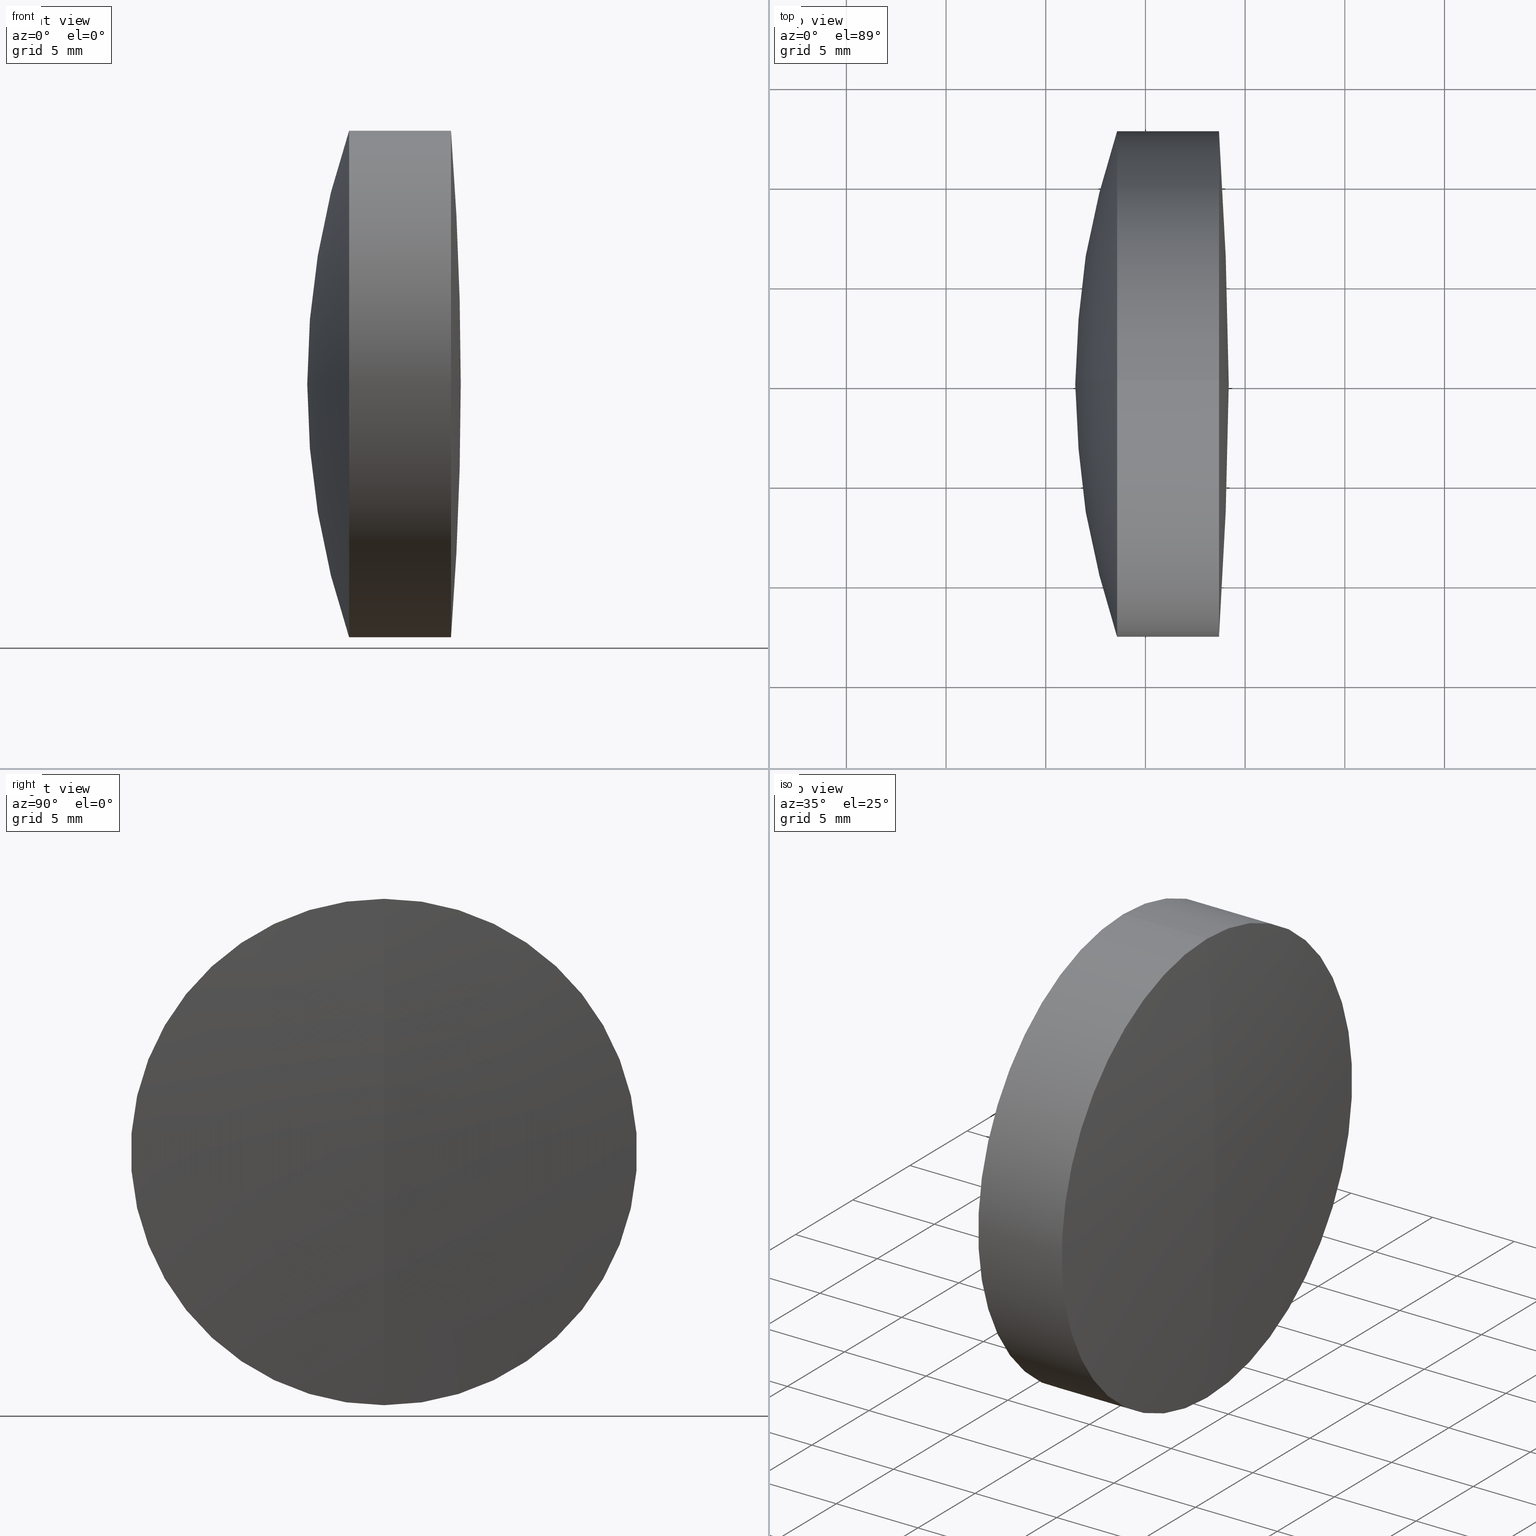
[diagram: canonical four-view strip — front | top / right | iso, engineering-drawing reading convention]
A machine part, canonical four-view strip (front | top / right | iso — engineering-drawing reading convention). The complete STEP part file that produces these views, byte-faithful:
ISO-10303-21;
HEADER;
FILE_DESCRIPTION (( 'STEP AP214' ),
    '1' );
FILE_NAME ('145119.STEP',
    '2019-06-03T01:16:00',
    ( 'user' ),
    ( '΢���й�' ),
    'SwSTEP 2.0',
    'SolidWorks 2016',
    '' );
FILE_SCHEMA (( 'AUTOMOTIVE_DESIGN' ));
ENDSEC;

DATA;
#1 = EDGE_CURVE ( 'NONE', #163, #24, #105, .T. ) ;
#2 = ORIENTED_EDGE ( 'NONE', *, *, #211, .T. ) ;
#3 = CIRCLE ( 'NONE', #226, 12.70000000000001000 ) ;
#4 = VERTEX_POINT ( 'NONE', #100 ) ;
#5 = EDGE_LOOP ( 'NONE', ( #139, #215, #315, #270 ) ) ;
#6 = CARTESIAN_POINT ( 'NONE',  ( 294.9373187479075700, 1.555301434917139400E-015, -12.70000000000000800 ) ) ;
#7 = ADVANCED_FACE ( 'NONE', ( #311 ), #265, .T. ) ;
#8 = AXIS2_PLACEMENT_3D ( 'NONE', #10, #205, #246 ) ;
#9 = MANIFOLD_SOLID_BREP ( '��ת3', #157 ) ;
#10 = CARTESIAN_POINT ( 'NONE',  ( 264.4789865545651500, 0.0000000000000000000, 6.938893903907228400E-015 ) ) ;
#11 = DIRECTION ( 'NONE',  ( 0.0000000000000000000, 0.0000000000000000000, 1.000000000000000000 ) ) ;
#12 = CARTESIAN_POINT ( 'NONE',  ( 298.6900972909085700, 1.555301434917140200E-015, -12.70000000000001000 ) ) ;
#13 = EDGE_LOOP ( 'NONE', ( #131, #283, #19 ) ) ;
#14 = CARTESIAN_POINT ( 'NONE',  ( 264.4789865545651500, 0.0000000000000000000, 6.938893903907228400E-015 ) ) ;
#15 = DIRECTION ( 'NONE',  ( 0.0000000000000000000, -1.224646799147353500E-016, 1.000000000000000000 ) ) ;
#16 = SURFACE_STYLE_FILL_AREA ( #305 ) ;
#17 = SURFACE_SIDE_STYLE ('',( #16 ) ) ;
#18 =( NAMED_UNIT ( * ) SI_UNIT ( $, .STERADIAN. ) SOLID_ANGLE_UNIT ( ) );
#19 = ORIENTED_EDGE ( 'NONE', *, *, #271, .F. ) ;
#20 = CIRCLE ( 'NONE', #141, 12.70000000000002600 ) ;
#21 = STYLED_ITEM ( 'NONE', ( #287 ), #94 ) ;
#22 =( GEOMETRIC_REPRESENTATION_CONTEXT ( 3 ) GLOBAL_UNCERTAINTY_ASSIGNED_CONTEXT ( ( #172 ) ) GLOBAL_UNIT_ASSIGNED_CONTEXT ( ( #144, #321, #170 ) ) REPRESENTATION_CONTEXT ( 'NONE', 'WORKASPACE' ) );
#23 = CIRCLE ( 'NONE', #269, 12.70000000000000800 ) ;
#24 = VERTEX_POINT ( 'NONE', #310 ) ;
#25 = VECTOR ( 'NONE', #138, 1000.000000000000000 ) ;
#26 = DIRECTION ( 'NONE',  ( -1.000000000000000000, -0.0000000000000000000, -0.0000000000000000000 ) ) ;
#27 = DIRECTION ( 'NONE',  ( 0.0000000000000000000, -1.224646799147353200E-016, 1.000000000000000000 ) ) ;
#28 = AXIS2_PLACEMENT_3D ( 'NONE', #60, #173, #147 ) ;
#29 = DIRECTION ( 'NONE',  ( -1.000000000000000000, -0.0000000000000000000, -0.0000000000000000000 ) ) ;
#30 = CARTESIAN_POINT ( 'NONE',  ( 294.9373187479075700, 0.0000000000000000000, 12.70000000000000800 ) ) ;
#31 =( NAMED_UNIT ( * ) SI_UNIT ( $, .STERADIAN. ) SOLID_ANGLE_UNIT ( ) );
#32 = UNCERTAINTY_MEASURE_WITH_UNIT (LENGTH_MEASURE( 1.000000000000000100E-005 ), #43, 'distance_accuracy_value', 'NONE');
#33 = CIRCLE ( 'NONE', #135, 33.00000000000000000 ) ;
#34 = CIRCLE ( 'NONE', #28, 33.00000000000000700 ) ;
#35 =( GEOMETRIC_REPRESENTATION_CONTEXT ( 3 ) GLOBAL_UNCERTAINTY_ASSIGNED_CONTEXT ( ( #313 ) ) GLOBAL_UNIT_ASSIGNED_CONTEXT ( ( #177, #90, #309 ) ) REPRESENTATION_CONTEXT ( 'NONE', 'WORKASPACE' ) );
#36 = VECTOR ( 'NONE', #155, 1000.000000000000000 ) ;
#37 = FACE_OUTER_BOUND ( 'NONE', #13, .T. ) ;
#38 = DIRECTION ( 'NONE',  ( -1.000000000000000000, -0.0000000000000000000, -0.0000000000000000000 ) ) ;
#39 = DIRECTION ( 'NONE',  ( 0.0000000000000000000, 0.0000000000000000000, 1.000000000000000000 ) ) ;
#40 = ADVANCED_FACE ( 'NONE', ( #244 ), #180, .T. ) ;
#41 = DIRECTION ( 'NONE',  ( 0.0000000000000000000, 0.0000000000000000000, 1.000000000000000000 ) ) ;
#42 = AXIS2_PLACEMENT_3D ( 'NONE', #61, #129, #11 ) ;
#43 =( LENGTH_UNIT ( ) NAMED_UNIT ( * ) SI_UNIT ( .MILLI., .METRE. ) );
#44 = ORIENTED_EDGE ( 'NONE', *, *, #271, .T. ) ;
#45 = FACE_OUTER_BOUND ( 'NONE', #291, .T. ) ;
#46 = AXIS2_PLACEMENT_3D ( 'NONE', #123, #174, #87 ) ;
#47 = ORIENTED_EDGE ( 'NONE', *, *, #146, .F. ) ;
#48 = CIRCLE ( 'NONE', #300, 39.47999999999997600 ) ;
#49 = EDGE_CURVE ( 'NONE', #201, #187, #33, .T. ) ;
#50 = ORIENTED_EDGE ( 'NONE', *, *, #185, .F. ) ;
#51 = VERTEX_POINT ( 'NONE', #229 ) ;
#52 = DIRECTION ( 'NONE',  ( 0.0000000000000000000, 0.0000000000000000000, 1.000000000000000000 ) ) ;
#53 = SPHERICAL_SURFACE ( 'NONE', #263, 33.00000000000000700 ) ;
#54 = ORIENTED_EDGE ( 'NONE', *, *, #148, .F. ) ;
#55 = CARTESIAN_POINT ( 'NONE',  ( 124.5233095260452400, 0.0000000000000000000, 0.0000000000000000000 ) ) ;
#56 = APPLICATION_PROTOCOL_DEFINITION ( 'draft international standard', 'automotive_design', 1998, #82 ) ;
#57 = ORIENTED_EDGE ( 'NONE', *, *, #137, .T. ) ;
#58 = DIRECTION ( 'NONE',  ( -1.000000000000000000, -0.0000000000000000000, -0.0000000000000000000 ) ) ;
#59 = VERTEX_POINT ( 'NONE', #279 ) ;
#60 = CARTESIAN_POINT ( 'NONE',  ( 264.4789865545651500, 0.0000000000000000000, 6.938893903907228400E-015 ) ) ;
#61 = CARTESIAN_POINT ( 'NONE',  ( 124.5233095260452400, 0.0000000000000000000, 0.0000000000000000000 ) ) ;
#62 = AXIS2_PLACEMENT_3D ( 'NONE', #331, #189, #340 ) ;
#63 = ADVANCED_FACE ( 'NONE', ( #235 ), #103, .T. ) ;
#64 = PRODUCT_CONTEXT ( 'NONE', #82, 'mechanical' ) ;
#65 = DIRECTION ( 'NONE',  ( -1.000000000000000000, -0.0000000000000000000, -0.0000000000000000000 ) ) ;
#66 = DIRECTION ( 'NONE',  ( -0.0000000000000000000, -1.000000000000000000, -0.0000000000000000000 ) ) ;
#67 = CARTESIAN_POINT ( 'NONE',  ( 297.4789865545651500, 0.0000000000000000000, 8.959561122500361500E-015 ) ) ;
#68 = VERTEX_POINT ( 'NONE', #67 ) ;
#69 = FILL_AREA_STYLE ('',( #282 ) ) ;
#70 = EDGE_CURVE ( 'NONE', #51, #59, #23, .T. ) ;
#71 = EDGE_CURVE ( 'NONE', #59, #51, #306, .T. ) ;
#72 = AXIS2_PLACEMENT_3D ( 'NONE', #206, #39, #224 ) ;
#73 = EDGE_LOOP ( 'NONE', ( #153, #57, #133, #161 ) ) ;
#74 = FACE_OUTER_BOUND ( 'NONE', #280, .T. ) ;
#75 = ORIENTED_EDGE ( 'NONE', *, *, #214, .T. ) ;
#76 = ORIENTED_EDGE ( 'NONE', *, *, #185, .T. ) ;
#77 = CARTESIAN_POINT ( 'NONE',  ( -0.5519199926577972300, 0.0000000000000000000, 0.0000000000000000000 ) ) ;
#78 = ORIENTED_EDGE ( 'NONE', *, *, #214, .F. ) ;
#79 = AXIS2_PLACEMENT_3D ( 'NONE', #165, #342, #190 ) ;
#80 = CARTESIAN_POINT ( 'NONE',  ( 330.9589865545651700, 0.0000000000000000000, 8.575898305430526300E-015 ) ) ;
#81 = CARTESIAN_POINT ( 'NONE',  ( 299.1789865545650900, 0.0000000000000000000, 1.011558256095713300E-014 ) ) ;
#82 = APPLICATION_CONTEXT ( 'automotive_design' ) ;
#83 = COLOUR_RGB ( '',1.000000000000000000, 1.000000000000000000, 1.000000000000000000 ) ;
#84 = EDGE_LOOP ( 'NONE', ( #268, #156, #288, #203 ) ) ;
#85 = FACE_OUTER_BOUND ( 'NONE', #5, .T. ) ;
#86 = AXIS2_PLACEMENT_3D ( 'NONE', #256, #66, #151 ) ;
#87 = DIRECTION ( 'NONE',  ( 0.0000000000000000000, 0.0000000000000000000, -1.000000000000000000 ) ) ;
#88 = CARTESIAN_POINT ( 'NONE',  ( 133.9789865545651500, 0.0000000000000000000, 0.0000000000000000000 ) ) ;
#89 = ADVANCED_FACE ( 'NONE', ( #297 ), #169, .T. ) ;
#90 =( NAMED_UNIT ( * ) PLANE_ANGLE_UNIT ( ) SI_UNIT ( $, .RADIAN. ) );
#91 = APPLICATION_PROTOCOL_DEFINITION ( 'draft international standard', 'automotive_design', 1998, #250 ) ;
#92 = PRODUCT_DEFINITION ( 'δ֪', '', #111, #95 ) ;
#93 = CARTESIAN_POINT ( 'NONE',  ( 264.4789865545651500, 0.0000000000000000000, 6.938893903907228400E-015 ) ) ;
#94 = MANIFOLD_SOLID_BREP ( '��ת1', #231 ) ;
#95 = PRODUCT_DEFINITION_CONTEXT ( 'detailed design', #250, 'design' ) ;
#96 = CIRCLE ( 'NONE', #259, 33.00000000000000000 ) ;
#97 = ORIENTED_EDGE ( 'NONE', *, *, #71, .T. ) ;
#98 = FACE_OUTER_BOUND ( 'NONE', #198, .T. ) ;
#99 = EDGE_CURVE ( 'NONE', #201, #307, #96, .T. ) ;
#100 = CARTESIAN_POINT ( 'NONE',  ( 294.9373187479075700, 0.0000000000000000000, 12.70000000000003100 ) ) ;
#101 = AXIS2_PLACEMENT_3D ( 'NONE', #164, #267, #292 ) ;
#102 = MECHANICAL_DESIGN_GEOMETRIC_PRESENTATION_REPRESENTATION (  '', ( #21 ), #35 ) ;
#103 = SPHERICAL_SURFACE ( 'NONE', #251, 165.1999999999999300 ) ;
#104 = COLOUR_RGB ( '',1.000000000000000000, 1.000000000000000000, 1.000000000000000000 ) ;
#105 = LINE ( 'NONE', #233, #36 ) ;
#106 = CIRCLE ( 'NONE', #8, 33.00000000000000700 ) ;
#107 = AXIS2_PLACEMENT_3D ( 'NONE', #275, #249, #303 ) ;
#108 = PRESENTATION_LAYER_ASSIGNMENT (  '', '', ( #21 ) ) ;
#109 = DIRECTION ( 'NONE',  ( 0.0000000000000000000, 0.0000000000000000000, 1.000000000000000000 ) ) ;
#110 = DIRECTION ( 'NONE',  ( 0.0000000000000000000, 0.0000000000000000000, 1.000000000000000000 ) ) ;
#111 = PRODUCT_DEFINITION_FORMATION_WITH_SPECIFIED_SOURCE ( '�κ�', '', #334, .NOT_KNOWN. ) ;
#112 = SURFACE_SIDE_STYLE ('',( #184 ) ) ;
#113 = ORIENTED_EDGE ( 'NONE', *, *, #49, .T. ) ;
#114 = CIRCLE ( 'NONE', #107, 12.70000000000000800 ) ;
#115 = ADVANCED_FACE ( 'NONE', ( #230 ), #199, .T. ) ;
#116 = DIRECTION ( 'NONE',  ( 0.0000000000000000000, 1.224646799147353200E-016, -1.000000000000000000 ) ) ;
#117 = SPHERICAL_SURFACE ( 'NONE', #278, 33.00000000000000000 ) ;
#118 = DIRECTION ( 'NONE',  ( 0.0000000000000000000, 0.0000000000000000000, 1.000000000000000000 ) ) ;
#119 = ORIENTED_EDGE ( 'NONE', *, *, #264, .T. ) ;
#120 = AXIS2_PLACEMENT_3D ( 'NONE', #345, #191, #27 ) ;
#121 = PRESENTATION_STYLE_ASSIGNMENT (( #296 ) ) ;
#122 = CARTESIAN_POINT ( 'NONE',  ( 330.9589865545651700, 0.0000000000000000000, 8.575898305430526300E-015 ) ) ;
#123 = CARTESIAN_POINT ( 'NONE',  ( 330.9589865545651700, 0.0000000000000000000, 8.575898305430526300E-015 ) ) ;
#124 = SURFACE_STYLE_USAGE ( .BOTH. , #17 ) ;
#125 = DIRECTION ( 'NONE',  ( -0.0000000000000000000, 1.000000000000000000, 1.224646799147353200E-016 ) ) ;
#126 = PRESENTATION_STYLE_ASSIGNMENT (( #208 ) ) ;
#127 = CARTESIAN_POINT ( 'NONE',  ( -0.5519199926577972300, 0.0000000000000000000, 0.0000000000000000000 ) ) ;
#128 = VERTEX_POINT ( 'NONE', #220 ) ;
#129 = DIRECTION ( 'NONE',  ( -1.000000000000000000, -0.0000000000000000000, -0.0000000000000000000 ) ) ;
#130 = VECTOR ( 'NONE', #58, 1000.000000000000000 ) ;
#131 = ORIENTED_EDGE ( 'NONE', *, *, #70, .T. ) ;
#132 = EDGE_CURVE ( 'NONE', #307, #59, #261, .T. ) ;
#133 = ORIENTED_EDGE ( 'NONE', *, *, #71, .F. ) ;
#134 = CYLINDRICAL_SURFACE ( 'NONE', #240, 12.70000000000000800 ) ;
#135 = AXIS2_PLACEMENT_3D ( 'NONE', #93, #125, #15 ) ;
#136 = PRODUCT_RELATED_PRODUCT_CATEGORY ( 'part', '', ( #334 ) ) ;
#137 = EDGE_CURVE ( 'NONE', #187, #51, #323, .T. ) ;
#138 = DIRECTION ( 'NONE',  ( -1.000000000000000000, -0.0000000000000000000, -0.0000000000000000000 ) ) ;
#139 = ORIENTED_EDGE ( 'NONE', *, *, #243, .T. ) ;
#140 = DIRECTION ( 'NONE',  ( -1.000000000000000000, -0.0000000000000000000, -0.0000000000000000000 ) ) ;
#141 = AXIS2_PLACEMENT_3D ( 'NONE', #193, #29, #216 ) ;
#142 = CARTESIAN_POINT ( 'NONE',  ( 264.4789865545651500, 0.0000000000000000000, 6.938893903907228400E-015 ) ) ;
#143 = FILL_AREA_STYLE_COLOUR ( '', #104 ) ;
#144 =( LENGTH_UNIT ( ) NAMED_UNIT ( * ) SI_UNIT ( .MILLI., .METRE. ) );
#145 = CARTESIAN_POINT ( 'NONE',  ( 264.4789865545651500, 0.0000000000000000000, 6.938893903907228400E-015 ) ) ;
#146 = EDGE_CURVE ( 'NONE', #307, #187, #114, .T. ) ;
#147 = DIRECTION ( 'NONE',  ( 0.0000000000000000000, 0.0000000000000000000, -1.000000000000000000 ) ) ;
#148 = EDGE_CURVE ( 'NONE', #59, #284, #48, .T. ) ;
#149 = ADVANCED_FACE ( 'NONE', ( #45 ), #245, .T. ) ;
#150 = CARTESIAN_POINT ( 'NONE',  ( 297.4789865545651500, 0.0000000000000000000, 8.959561122500361500E-015 ) ) ;
#151 = DIRECTION ( 'NONE',  ( 0.0000000000000000000, 0.0000000000000000000, -1.000000000000000000 ) ) ;
#152 = PRESENTATION_LAYER_ASSIGNMENT (  '', '', ( #286 ) ) ;
#153 = ORIENTED_EDGE ( 'NONE', *, *, #146, .T. ) ;
#154 = FACE_OUTER_BOUND ( 'NONE', #73, .T. ) ;
#155 = DIRECTION ( 'NONE',  ( -1.000000000000000000, -0.0000000000000000000, -0.0000000000000000000 ) ) ;
#156 = ORIENTED_EDGE ( 'NONE', *, *, #295, .T. ) ;
#157 = CLOSED_SHELL ( 'NONE', ( #89, #223, #302, #204, #40, #63 ) ) ;
#158 = AXIS2_PLACEMENT_3D ( 'NONE', #293, #140, #319 ) ;
#159 = EDGE_CURVE ( 'NONE', #187, #307, #316, .T. ) ;
#160 = SPHERICAL_SURFACE ( 'NONE', #46, 39.47999999999997600 ) ;
#161 = ORIENTED_EDGE ( 'NONE', *, *, #132, .F. ) ;
#162 = CIRCLE ( 'NONE', #194, 39.47999999999997600 ) ;
#163 = VERTEX_POINT ( 'NONE', #12 ) ;
#164 = CARTESIAN_POINT ( 'NONE',  ( 264.4789865545651500, 0.0000000000000000000, 6.938893903907228400E-015 ) ) ;
#165 = CARTESIAN_POINT ( 'NONE',  ( 294.9373187479075700, 0.0000000000000000000, 0.0000000000000000000 ) ) ;
#166 = EDGE_CURVE ( 'NONE', #68, #24, #106, .T. ) ;
#167 = DIRECTION ( 'NONE',  ( -1.000000000000000000, -0.0000000000000000000, -0.0000000000000000000 ) ) ;
#168 = CARTESIAN_POINT ( 'NONE',  ( 264.4789865545651500, 0.0000000000000000000, 6.938893903907228400E-015 ) ) ;
#169 = SPHERICAL_SURFACE ( 'NONE', #324, 165.1999999999999300 ) ;
#170 =( NAMED_UNIT ( * ) SI_UNIT ( $, .STERADIAN. ) SOLID_ANGLE_UNIT ( ) );
#171 = CIRCLE ( 'NONE', #79, 12.70000000000002600 ) ;
#172 = UNCERTAINTY_MEASURE_WITH_UNIT (LENGTH_MEASURE( 1.000000000000000100E-005 ), #144, 'distance_accuracy_value', 'NONE');
#173 = DIRECTION ( 'NONE',  ( 0.0000000000000000000, -1.000000000000000000, 0.0000000000000000000 ) ) ;
#174 = DIRECTION ( 'NONE',  ( -0.0000000000000000000, -1.000000000000000000, -0.0000000000000000000 ) ) ;
#175 = ADVANCED_FACE ( 'NONE', ( #37 ), #160, .T. ) ;
#176 = AXIS2_PLACEMENT_3D ( 'NONE', #77, #167, #314 ) ;
#177 =( LENGTH_UNIT ( ) NAMED_UNIT ( * ) SI_UNIT ( .MILLI., .METRE. ) );
#178 = FILL_AREA_STYLE_COLOUR ( '', #83 ) ;
#179 = EDGE_CURVE ( 'NONE', #68, #4, #34, .T. ) ;
#180 = CYLINDRICAL_SURFACE ( 'NONE', #234, 12.70000000000001700 ) ;
#181 = DIRECTION ( 'NONE',  ( 0.0000000000000000000, 0.0000000000000000000, -1.000000000000000000 ) ) ;
#182 =( NAMED_UNIT ( * ) PLANE_ANGLE_UNIT ( ) SI_UNIT ( $, .RADIAN. ) );
#183 = COLOUR_RGB ( '',1.000000000000000000, 1.000000000000000000, 1.000000000000000000 ) ;
#184 = SURFACE_STYLE_FILL_AREA ( #273 ) ;
#185 = EDGE_CURVE ( 'NONE', #327, #128, #237, .T. ) ;
#186 = ORIENTED_EDGE ( 'NONE', *, *, #166, .F. ) ;
#187 = VERTEX_POINT ( 'NONE', #6 ) ;
#188 = VECTOR ( 'NONE', #38, 1000.000000000000000 ) ;
#189 = DIRECTION ( 'NONE',  ( 0.0000000000000000000, -1.000000000000000000, 0.0000000000000000000 ) ) ;
#190 = DIRECTION ( 'NONE',  ( 0.0000000000000000000, 0.0000000000000000000, 1.000000000000000000 ) ) ;
#191 = DIRECTION ( 'NONE',  ( -0.0000000000000000000, 1.000000000000000000, 1.224646799147353200E-016 ) ) ;
#192 = ORIENTED_EDGE ( 'NONE', *, *, #49, .F. ) ;
#193 = CARTESIAN_POINT ( 'NONE',  ( 294.9373187479075700, 0.0000000000000000000, 0.0000000000000000000 ) ) ;
#194 = AXIS2_PLACEMENT_3D ( 'NONE', #80, #272, #109 ) ;
#195 =( NAMED_UNIT ( * ) PLANE_ANGLE_UNIT ( ) SI_UNIT ( $, .RADIAN. ) );
#196 = ADVANCED_BREP_SHAPE_REPRESENTATION ( '145119', ( #94, #9, #72 ), #210 ) ;
#197 = SURFACE_STYLE_FILL_AREA ( #69 ) ;
#198 = EDGE_LOOP ( 'NONE', ( #186, #335, #2 ) ) ;
#199 = SPHERICAL_SURFACE ( 'NONE', #86, 39.47999999999997600 ) ;
#200 = CARTESIAN_POINT ( 'NONE',  ( 124.5233095260452400, 1.555301434917139400E-015, -12.70000000000000800 ) ) ;
#201 = VERTEX_POINT ( 'NONE', #150 ) ;
#202 = EDGE_CURVE ( 'NONE', #128, #4, #308, .T. ) ;
#203 = ORIENTED_EDGE ( 'NONE', *, *, #264, .F. ) ;
#204 = ADVANCED_FACE ( 'NONE', ( #98 ), #299, .F. ) ;
#205 = DIRECTION ( 'NONE',  ( -0.0000000000000000000, 1.000000000000000000, 1.224646799147353200E-016 ) ) ;
#206 = CARTESIAN_POINT ( 'NONE',  ( 0.0000000000000000000, 0.0000000000000000000, 0.0000000000000000000 ) ) ;
#207 = DIRECTION ( 'NONE',  ( 0.0000000000000000000, -1.000000000000000000, 0.0000000000000000000 ) ) ;
#208 = SURFACE_STYLE_USAGE ( .BOTH. , #258 ) ;
#209 = ORIENTED_EDGE ( 'NONE', *, *, #159, .T. ) ;
#210 =( GEOMETRIC_REPRESENTATION_CONTEXT ( 3 ) GLOBAL_UNCERTAINTY_ASSIGNED_CONTEXT ( ( #255 ) ) GLOBAL_UNIT_ASSIGNED_CONTEXT ( ( #294, #195, #31 ) ) REPRESENTATION_CONTEXT ( 'NONE', 'WORKASPACE' ) );
#211 = EDGE_CURVE ( 'NONE', #4, #24, #171, .T. ) ;
#212 = EDGE_LOOP ( 'NONE', ( #78, #76, #236 ) ) ;
#213 = DIRECTION ( 'NONE',  ( 0.0000000000000000000, 0.0000000000000000000, 1.000000000000000000 ) ) ;
#214 = EDGE_CURVE ( 'NONE', #327, #163, #232, .T. ) ;
#215 = ORIENTED_EDGE ( 'NONE', *, *, #1, .T. ) ;
#216 = DIRECTION ( 'NONE',  ( 0.0000000000000000000, 0.0000000000000000000, 1.000000000000000000 ) ) ;
#217 = CARTESIAN_POINT ( 'NONE',  ( 298.6900972909085700, 0.0000000000000000000, 0.0000000000000000000 ) ) ;
#218 = ORIENTED_EDGE ( 'NONE', *, *, #243, .F. ) ;
#219 = CYLINDRICAL_SURFACE ( 'NONE', #176, 12.70000000000001700 ) ;
#220 = CARTESIAN_POINT ( 'NONE',  ( 298.6900972909085700, 0.0000000000000000000, 12.70000000000001000 ) ) ;
#221 = DIRECTION ( 'NONE',  ( 0.0000000000000000000, 1.000000000000000000, 0.0000000000000000000 ) ) ;
#222 = DIRECTION ( 'NONE',  ( 0.0000000000000000000, 0.0000000000000000000, 1.000000000000000000 ) ) ;
#223 = ADVANCED_FACE ( 'NONE', ( #85 ), #219, .T. ) ;
#224 = DIRECTION ( 'NONE',  ( 1.000000000000000000, 0.0000000000000000000, 0.0000000000000000000 ) ) ;
#225 = DIRECTION ( 'NONE',  ( 0.0000000000000000000, 1.000000000000000000, 0.0000000000000000000 ) ) ;
#226 = AXIS2_PLACEMENT_3D ( 'NONE', #217, #26, #213 ) ;
#227 = DIRECTION ( 'NONE',  ( 0.0000000000000000000, 0.0000000000000000000, 1.000000000000000000 ) ) ;
#228 = CARTESIAN_POINT ( 'NONE',  ( 124.5233095260452400, 0.0000000000000000000, 12.70000000000000800 ) ) ;
#229 = CARTESIAN_POINT ( 'NONE',  ( 293.5774349548790400, 0.0000000000000000000, -12.69999999999999900 ) ) ;
#230 = FACE_OUTER_BOUND ( 'NONE', #325, .T. ) ;
#231 = CLOSED_SHELL ( 'NONE', ( #149, #277, #175, #115, #7, #326 ) ) ;
#232 = CIRCLE ( 'NONE', #120, 165.1999999999999300 ) ;
#233 = CARTESIAN_POINT ( 'NONE',  ( -0.5519199926577972300, 1.555301434917140600E-015, -12.70000000000001700 ) ) ;
#234 = AXIS2_PLACEMENT_3D ( 'NONE', #127, #336, #333 ) ;
#235 = FACE_OUTER_BOUND ( 'NONE', #212, .T. ) ;
#236 = ORIENTED_EDGE ( 'NONE', *, *, #295, .F. ) ;
#237 = CIRCLE ( 'NONE', #62, 165.1999999999999300 ) ;
#238 = DIRECTION ( 'NONE',  ( -1.000000000000000000, -0.0000000000000000000, -0.0000000000000000000 ) ) ;
#239 = DIRECTION ( 'NONE',  ( 0.0000000000000000000, 0.0000000000000000000, 1.000000000000000000 ) ) ;
#240 = AXIS2_PLACEMENT_3D ( 'NONE', #55, #238, #239 ) ;
#241 = DIRECTION ( 'NONE',  ( 0.0000000000000000000, 1.000000000000000000, 0.0000000000000000000 ) ) ;
#242 = PRODUCT_DEFINITION_SHAPE ( 'NONE', 'NONE',  #92 ) ;
#243 = EDGE_CURVE ( 'NONE', #128, #163, #289, .T. ) ;
#244 = FACE_OUTER_BOUND ( 'NONE', #84, .T. ) ;
#245 = SPHERICAL_SURFACE ( 'NONE', #339, 33.00000000000000000 ) ;
#246 = DIRECTION ( 'NONE',  ( 0.0000000000000000000, -1.224646799147353500E-016, 1.000000000000000000 ) ) ;
#247 =( GEOMETRIC_REPRESENTATION_CONTEXT ( 3 ) GLOBAL_UNCERTAINTY_ASSIGNED_CONTEXT ( ( #32 ) ) GLOBAL_UNIT_ASSIGNED_CONTEXT ( ( #43, #182, #18 ) ) REPRESENTATION_CONTEXT ( 'NONE', 'WORKASPACE' ) );
#248 = DIRECTION ( 'NONE',  ( 0.0000000000000000000, 0.0000000000000000000, 1.000000000000000000 ) ) ;
#249 = DIRECTION ( 'NONE',  ( -1.000000000000000000, -0.0000000000000000000, -0.0000000000000000000 ) ) ;
#250 = APPLICATION_CONTEXT ( 'automotive_design' ) ;
#251 = AXIS2_PLACEMENT_3D ( 'NONE', #257, #254, #227 ) ;
#252 = CARTESIAN_POINT ( 'NONE',  ( -0.5519199926577972300, 0.0000000000000000000, 12.70000000000001700 ) ) ;
#253 = CARTESIAN_POINT ( 'NONE',  ( 293.5774349548790400, 0.0000000000000000000, 0.0000000000000000000 ) ) ;
#254 = DIRECTION ( 'NONE',  ( 0.0000000000000000000, 1.000000000000000000, 0.0000000000000000000 ) ) ;
#255 = UNCERTAINTY_MEASURE_WITH_UNIT (LENGTH_MEASURE( 1.000000000000000100E-005 ), #294, 'distance_accuracy_value', 'NONE');
#256 = CARTESIAN_POINT ( 'NONE',  ( 330.9589865545651700, 0.0000000000000000000, 8.575898305430526300E-015 ) ) ;
#257 = CARTESIAN_POINT ( 'NONE',  ( 133.9789865545651500, 0.0000000000000000000, 0.0000000000000000000 ) ) ;
#258 = SURFACE_SIDE_STYLE ('',( #197 ) ) ;
#259 = AXIS2_PLACEMENT_3D ( 'NONE', #14, #207, #181 ) ;
#260 = ORIENTED_EDGE ( 'NONE', *, *, #166, .T. ) ;
#261 = LINE ( 'NONE', #228, #188 ) ;
#262 = FACE_OUTER_BOUND ( 'NONE', #285, .T. ) ;
#263 = AXIS2_PLACEMENT_3D ( 'NONE', #142, #346, #52 ) ;
#264 = EDGE_CURVE ( 'NONE', #24, #4, #20, .T. ) ;
#265 = CYLINDRICAL_SURFACE ( 'NONE', #42, 12.70000000000000800 ) ;
#266 = EDGE_LOOP ( 'NONE', ( #50, #75, #218 ) ) ;
#267 = DIRECTION ( 'NONE',  ( 0.0000000000000000000, 1.000000000000000000, 0.0000000000000000000 ) ) ;
#268 = ORIENTED_EDGE ( 'NONE', *, *, #1, .F. ) ;
#269 = AXIS2_PLACEMENT_3D ( 'NONE', #328, #281, #276 ) ;
#270 = ORIENTED_EDGE ( 'NONE', *, *, #202, .F. ) ;
#271 = EDGE_CURVE ( 'NONE', #51, #284, #162, .T. ) ;
#272 = DIRECTION ( 'NONE',  ( 0.0000000000000000000, 1.000000000000000000, -0.0000000000000000000 ) ) ;
#273 = FILL_AREA_STYLE ('',( #143 ) ) ;
#274 = ORIENTED_EDGE ( 'NONE', *, *, #99, .F. ) ;
#275 = CARTESIAN_POINT ( 'NONE',  ( 294.9373187479075700, 0.0000000000000000000, 0.0000000000000000000 ) ) ;
#276 = DIRECTION ( 'NONE',  ( 0.0000000000000000000, 0.0000000000000000000, 1.000000000000000000 ) ) ;
#277 = ADVANCED_FACE ( 'NONE', ( #154 ), #134, .T. ) ;
#278 = AXIS2_PLACEMENT_3D ( 'NONE', #168, #241, #110 ) ;
#279 = CARTESIAN_POINT ( 'NONE',  ( 293.5774349548790400, -1.555301434917138200E-015, 12.70000000000000600 ) ) ;
#280 = EDGE_LOOP ( 'NONE', ( #341, #260, #119 ) ) ;
#281 = DIRECTION ( 'NONE',  ( -1.000000000000000000, -0.0000000000000000000, -0.0000000000000000000 ) ) ;
#282 = FILL_AREA_STYLE_COLOUR ( '', #183 ) ;
#283 = ORIENTED_EDGE ( 'NONE', *, *, #148, .T. ) ;
#284 = VERTEX_POINT ( 'NONE', #320 ) ;
#285 = EDGE_LOOP ( 'NONE', ( #192, #337, #344 ) ) ;
#286 = STYLED_ITEM ( 'NONE', ( #126 ), #9 ) ;
#287 = PRESENTATION_STYLE_ASSIGNMENT (( #124 ) ) ;
#288 = ORIENTED_EDGE ( 'NONE', *, *, #202, .T. ) ;
#289 = CIRCLE ( 'NONE', #158, 12.70000000000001000 ) ;
#290 = AXIS2_PLACEMENT_3D ( 'NONE', #253, #65, #222 ) ;
#291 = EDGE_LOOP ( 'NONE', ( #274, #113, #47 ) ) ;
#292 = DIRECTION ( 'NONE',  ( 0.0000000000000000000, 0.0000000000000000000, 1.000000000000000000 ) ) ;
#293 = CARTESIAN_POINT ( 'NONE',  ( 298.6900972909085700, 0.0000000000000000000, 0.0000000000000000000 ) ) ;
#294 =( LENGTH_UNIT ( ) NAMED_UNIT ( * ) SI_UNIT ( .MILLI., .METRE. ) );
#295 = EDGE_CURVE ( 'NONE', #163, #128, #3, .T. ) ;
#296 = SURFACE_STYLE_USAGE ( .BOTH. , #112 ) ;
#297 = FACE_OUTER_BOUND ( 'NONE', #266, .T. ) ;
#298 = EDGE_LOOP ( 'NONE', ( #338, #209, #322, #343 ) ) ;
#299 = SPHERICAL_SURFACE ( 'NONE', #101, 33.00000000000000700 ) ;
#300 = AXIS2_PLACEMENT_3D ( 'NONE', #122, #301, #116 ) ;
#301 = DIRECTION ( 'NONE',  ( 0.0000000000000000000, -1.000000000000000000, -1.224646799147353200E-016 ) ) ;
#302 = ADVANCED_FACE ( 'NONE', ( #74 ), #53, .F. ) ;
#303 = DIRECTION ( 'NONE',  ( 0.0000000000000000000, 0.0000000000000000000, 1.000000000000000000 ) ) ;
#304 = DIRECTION ( 'NONE',  ( -1.000000000000000000, -0.0000000000000000000, -0.0000000000000000000 ) ) ;
#305 = FILL_AREA_STYLE ('',( #178 ) ) ;
#306 = CIRCLE ( 'NONE', #290, 12.70000000000000800 ) ;
#307 = VERTEX_POINT ( 'NONE', #30 ) ;
#308 = LINE ( 'NONE', #252, #25 ) ;
#309 =( NAMED_UNIT ( * ) SI_UNIT ( $, .STERADIAN. ) SOLID_ANGLE_UNIT ( ) );
#310 = CARTESIAN_POINT ( 'NONE',  ( 294.9373187479075700, 1.555301434917142400E-015, -12.70000000000002400 ) ) ;
#311 = FACE_OUTER_BOUND ( 'NONE', #298, .T. ) ;
#312 = STYLED_ITEM ( 'NONE', ( #121 ), #196 ) ;
#313 = UNCERTAINTY_MEASURE_WITH_UNIT (LENGTH_MEASURE( 1.000000000000000100E-005 ), #177, 'distance_accuracy_value', 'NONE');
#314 = DIRECTION ( 'NONE',  ( 0.0000000000000000000, 0.0000000000000000000, 1.000000000000000000 ) ) ;
#315 = ORIENTED_EDGE ( 'NONE', *, *, #211, .F. ) ;
#316 = CIRCLE ( 'NONE', #317, 12.70000000000000800 ) ;
#317 = AXIS2_PLACEMENT_3D ( 'NONE', #330, #304, #248 ) ;
#318 = SHAPE_DEFINITION_REPRESENTATION ( #242, #196 ) ;
#319 = DIRECTION ( 'NONE',  ( 0.0000000000000000000, 0.0000000000000000000, 1.000000000000000000 ) ) ;
#320 = CARTESIAN_POINT ( 'NONE',  ( 291.4789865545652100, 0.0000000000000000000, 6.158445523913652300E-015 ) ) ;
#321 =( NAMED_UNIT ( * ) PLANE_ANGLE_UNIT ( ) SI_UNIT ( $, .RADIAN. ) );
#322 = ORIENTED_EDGE ( 'NONE', *, *, #132, .T. ) ;
#323 = LINE ( 'NONE', #200, #130 ) ;
#324 = AXIS2_PLACEMENT_3D ( 'NONE', #88, #225, #118 ) ;
#325 = EDGE_LOOP ( 'NONE', ( #54, #97, #44 ) ) ;
#326 = ADVANCED_FACE ( 'NONE', ( #262 ), #117, .T. ) ;
#327 = VERTEX_POINT ( 'NONE', #81 ) ;
#328 = CARTESIAN_POINT ( 'NONE',  ( 293.5774349548790400, 0.0000000000000000000, 0.0000000000000000000 ) ) ;
#329 = PRESENTATION_LAYER_ASSIGNMENT (  '', '', ( #312 ) ) ;
#330 = CARTESIAN_POINT ( 'NONE',  ( 294.9373187479075700, 0.0000000000000000000, 0.0000000000000000000 ) ) ;
#331 = CARTESIAN_POINT ( 'NONE',  ( 133.9789865545651500, 0.0000000000000000000, 0.0000000000000000000 ) ) ;
#332 = MECHANICAL_DESIGN_GEOMETRIC_PRESENTATION_REPRESENTATION (  '', ( #286 ), #247 ) ;
#333 = DIRECTION ( 'NONE',  ( 0.0000000000000000000, 0.0000000000000000000, 1.000000000000000000 ) ) ;
#334 = PRODUCT ( '145119', '145119', '', ( #64 ) ) ;
#335 = ORIENTED_EDGE ( 'NONE', *, *, #179, .T. ) ;
#336 = DIRECTION ( 'NONE',  ( -1.000000000000000000, -0.0000000000000000000, -0.0000000000000000000 ) ) ;
#337 = ORIENTED_EDGE ( 'NONE', *, *, #99, .T. ) ;
#338 = ORIENTED_EDGE ( 'NONE', *, *, #137, .F. ) ;
#339 = AXIS2_PLACEMENT_3D ( 'NONE', #145, #221, #41 ) ;
#340 = DIRECTION ( 'NONE',  ( 0.0000000000000000000, 0.0000000000000000000, -1.000000000000000000 ) ) ;
#341 = ORIENTED_EDGE ( 'NONE', *, *, #179, .F. ) ;
#342 = DIRECTION ( 'NONE',  ( -1.000000000000000000, -0.0000000000000000000, -0.0000000000000000000 ) ) ;
#343 = ORIENTED_EDGE ( 'NONE', *, *, #70, .F. ) ;
#344 = ORIENTED_EDGE ( 'NONE', *, *, #159, .F. ) ;
#345 = CARTESIAN_POINT ( 'NONE',  ( 133.9789865545651500, 0.0000000000000000000, 0.0000000000000000000 ) ) ;
#346 = DIRECTION ( 'NONE',  ( 0.0000000000000000000, 1.000000000000000000, 0.0000000000000000000 ) ) ;
#347 = MECHANICAL_DESIGN_GEOMETRIC_PRESENTATION_REPRESENTATION (  '', ( #312 ), #22 ) ;
ENDSEC;
END-ISO-10303-21;
